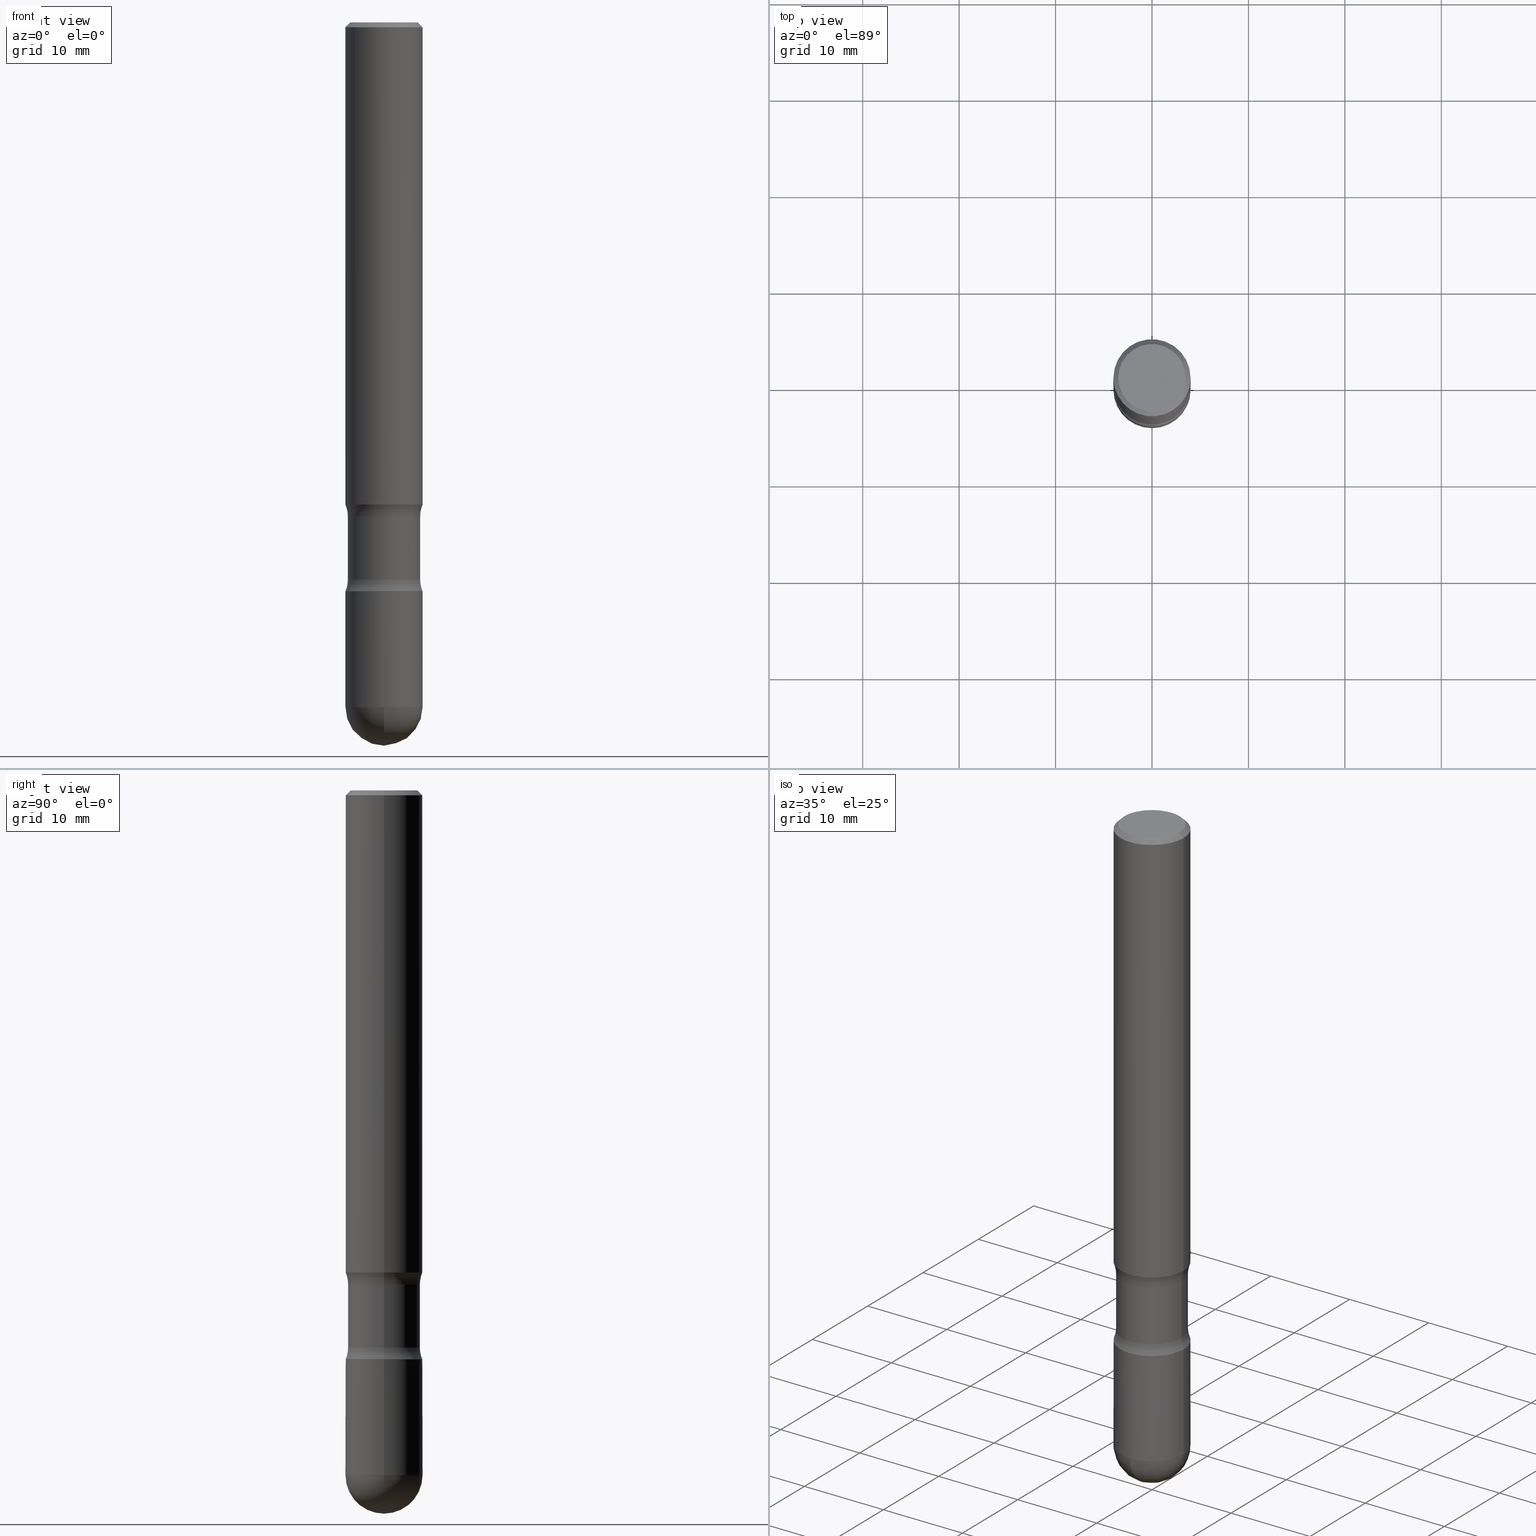
[diagram: canonical four-view strip — front | top / right | iso, engineering-drawing reading convention]
A machine part, canonical four-view strip (front | top / right | iso — engineering-drawing reading convention). The complete STEP part file that produces these views, byte-faithful:
ISO-10303-21;
HEADER;
FILE_DESCRIPTION (( 'STEP AP203' ),
    '1' );
FILE_NAME ('44929.STEP',
    '2024-02-29T19:26:05',
    ( '' ),
    ( '' ),
    'SwSTEP 2.0',
    'SolidWorks 2023',
    '' );
FILE_SCHEMA (( 'CONFIG_CONTROL_DESIGN' ));
ENDSEC;

DATA;
#1 = CARTESIAN_POINT ( 'NONE',  ( 4.890937612370288047E-31, -6.982962677686311331E-17, -0.02000000000000005940 ) ) ;
#2 = DIRECTION ( 'NONE',  ( -2.445468806185136597E-29, 3.491481338843145583E-15, 1.000000000000000000 ) ) ;
#3 = EDGE_LOOP ( 'NONE', ( #522, #311 ) ) ;
#4 = FACE_OUTER_BOUND ( 'NONE', #107, .T. ) ;
#5 = VERTEX_POINT ( 'NONE', #45 ) ;
#6 = AXIS2_PLACEMENT_3D ( 'NONE', #65, #548, #465 ) ;
#7 = DIRECTION ( 'NONE',  ( -1.000000000000000000, 6.982962677686265922E-15, -4.876176775795935793E-29 ) ) ;
#8 = AXIS2_PLACEMENT_3D ( 'NONE', #202, #520, #346 ) ;
#9 = DIRECTION ( 'NONE',  ( 2.445468806185136597E-29, -3.491481338843145583E-15, -1.000000000000000000 ) ) ;
#10 = CARTESIAN_POINT ( 'NONE',  ( 0.1569999999999995566, -9.206687142395482875E-15, -2.322899999999999743 ) ) ;
#11 = APPLICATION_CONTEXT ( 'configuration controlled 3d designs of mechanical parts and assemblies' ) ;
#12 = DIRECTION ( 'NONE',  ( -1.000000000000000000, 6.860497997771528407E-15, 0.000000000000000000 ) ) ;
#13 = CC_DESIGN_PERSON_AND_ORGANIZATION_ASSIGNMENT ( #90, #261, ( #39 ) ) ;
#14 = FACE_OUTER_BOUND ( 'NONE', #271, .T. ) ;
#15 = ORIENTED_EDGE ( 'NONE', *, *, #31, .T. ) ;
#16 = CALENDAR_DATE ( 2024, 29, 2 ) ;
#17 = AXIS2_PLACEMENT_3D ( 'NONE', #526, #127, #490 ) ;
#18 = CARTESIAN_POINT ( 'NONE',  ( 9.601573681818597005E-16, 0.1374999999999997335, -4.779444278458813133E-16 ) ) ;
#19 = EDGE_CURVE ( 'NONE', #279, #371, #563, .T. ) ;
#20 = DIRECTION ( 'NONE',  ( 1.000000000000000000, -6.982962677686265922E-15, 4.883557194083112340E-29 ) ) ;
#21 = ORIENTED_EDGE ( 'NONE', *, *, #433, .T. ) ;
#22 = APPROVAL ( #366, 'UNSPECIFIED' ) ;
#23 = DIRECTION ( 'NONE',  ( -2.445468806185136597E-29, 3.491481338843145583E-15, 1.000000000000000000 ) ) ;
#24 = EDGE_CURVE ( 'NONE', #234, #5, #302, .T. ) ;
#25 = CARTESIAN_POINT ( 'NONE',  ( 5.679720946942348165E-29, -8.109136230210588542E-15, -2.322548925006552967 ) ) ;
#26 = AXIS2_PLACEMENT_3D ( 'NONE', #530, #47, #12 ) ;
#27 = APPROVAL_PERSON_ORGANIZATION ( #566, #71, #215 ) ;
#28 = LINE ( 'NONE', #117, #558 ) ;
#29 = CYLINDRICAL_SURFACE ( 'NONE', #199, 0.1574999999999998623 ) ;
#30 = CARTESIAN_POINT ( 'NONE',  ( -0.1574999999999998623, -7.010545380263155655E-15, -2.322899999999999743 ) ) ;
#31 = EDGE_CURVE ( 'NONE', #288, #160, #430, .T. ) ;
#32 = CIRCLE ( 'NONE', #163, 0.1474999999999995759 ) ;
#33 = CARTESIAN_POINT ( 'NONE',  ( 6.835818953929311707E-29, -9.759737786468243605E-15, -2.795299999999999674 ) ) ;
#34 = CC_DESIGN_PERSON_AND_ORGANIZATION_ASSIGNMENT ( #230, #540, ( #500 ) ) ;
#35 = ORIENTED_EDGE ( 'NONE', *, *, #527, .F. ) ;
#36 = CARTESIAN_POINT ( 'NONE',  ( 6.822350084874735636E-29, -9.779025973554814517E-15, -2.795299999999999674 ) ) ;
#37 = ADVANCED_FACE ( 'NONE', ( #216 ), #379, .F. ) ;
#38 = DATE_TIME_ROLE ( 'creation_date' ) ;
#39 = PRODUCT ( '44929', '44929', '', ( #354 ) ) ;
#40 = FACE_OUTER_BOUND ( 'NONE', #332, .T. ) ;
#41 = AXIS2_PLACEMENT_3D ( 'NONE', #25, #503, #381 ) ;
#42 = CIRCLE ( 'NONE', #41, 0.1573510749934463604 ) ;
#43 = DIRECTION ( 'NONE',  ( -1.000000000000000000, 6.982962677686265922E-15, -4.876176775795935793E-29 ) ) ;
#44 = DIRECTION ( 'NONE',  ( 2.445468806185136877E-29, -3.491481338843145188E-15, -1.000000000000000000 ) ) ;
#45 = CARTESIAN_POINT ( 'NONE',  ( -0.1569999999999995566, -6.992949752029807948E-15, -2.322899999999999743 ) ) ;
#46 = ADVANCED_FACE ( 'NONE', ( #94 ), #441, .T. ) ;
#47 = DIRECTION ( 'NONE',  ( 6.860497997771531562E-15, 1.000000000000000000, -3.491481338843145583E-15 ) ) ;
#48 = ORIENTED_EDGE ( 'NONE', *, *, #385, .F. ) ;
#49 = CARTESIAN_POINT ( 'NONE',  ( -0.2725000000000002420, -6.036457717796929902E-15, -2.273910205144336505 ) ) ;
#50 = EDGE_CURVE ( 'NONE', #5, #234, #222, .T. ) ;
#51 = AXIS2_PLACEMENT_3D ( 'NONE', #519, #451, #226 ) ;
#52 = COORDINATED_UNIVERSAL_TIME_OFFSET ( 5, 0, .BEHIND. ) ;
#53 = CIRCLE ( 'NONE', #360, 0.1374999999999997335 ) ;
#54 = CARTESIAN_POINT ( 'NONE',  ( -0.2724999999999879186, -5.141170640375611152E-15, -2.017489794855663376 ) ) ;
#55 = FACE_OUTER_BOUND ( 'NONE', #459, .T. ) ;
#56 = ORIENTED_EDGE ( 'NONE', *, *, #400, .F. ) ;
#57 = DATE_AND_TIME ( #142, #211 ) ;
#58 = EDGE_CURVE ( 'NONE', #237, #397, #118, .T. ) ;
#59 = CARTESIAN_POINT ( 'NONE',  ( -0.1574999999999994738, -7.815945085411339316E-15, -2.795299999999999674 ) ) ;
#60 = AXIS2_PLACEMENT_3D ( 'NONE', #54, #178, #355 ) ;
#61 = ORIENTED_EDGE ( 'NONE', *, *, #524, .T. ) ;
#62 = CARTESIAN_POINT ( 'NONE',  ( 5.680579489887452821E-29, -8.110362001998742346E-15, -2.322899999999999743 ) ) ;
#63 = DATE_AND_TIME ( #16, #294 ) ;
#64 = EDGE_CURVE ( 'NONE', #288, #279, #447, .T. ) ;
#65 = CARTESIAN_POINT ( 'NONE',  ( 5.680579489887452821E-29, -8.110362001998742346E-15, -2.322899999999999743 ) ) ;
#66 = EDGE_CURVE ( 'NONE', #160, #397, #324, .T. ) ;
#67 = CALENDAR_DATE ( 2024, 29, 2 ) ;
#68 = DIRECTION ( 'NONE',  ( -1.000000000000000000, 6.982962677686265922E-15, -4.876176775795935793E-29 ) ) ;
#69 = EDGE_LOOP ( 'NONE', ( #104, #146, #179, #228 ) ) ;
#70 = CARTESIAN_POINT ( 'NONE',  ( 0.1573510749934463604, -9.188642965150322585E-15, -2.322548925006552967 ) ) ;
#71 = APPROVAL ( #218, 'UNSPECIFIED' ) ;
#72 = AXIS2_PLACEMENT_3D ( 'NONE', #1, #402, #97 ) ;
#73 = AXIS2_PLACEMENT_3D ( 'NONE', #473, #250, #555 ) ;
#74 = ORIENTED_EDGE ( 'NONE', *, *, #469, .T. ) ;
#75 = DIRECTION ( 'NONE',  ( 2.445468806185136877E-29, -3.491481338843145188E-15, -1.000000000000000000 ) ) ;
#76 = CYLINDRICAL_SURFACE ( 'NONE', #326, 0.1574999999999995015 ) ;
#77 = EDGE_CURVE ( 'NONE', #328, #371, #557, .T. ) ;
#78 = DIRECTION ( 'NONE',  ( -1.000000000000000000, 6.982962677686268288E-15, 0.000000000000000000 ) ) ;
#79 = DIRECTION ( 'NONE',  ( -1.000000000000000000, 7.105427357601001070E-15, -4.926315508542082329E-29 ) ) ;
#80 = ORIENTED_EDGE ( 'NONE', *, *, #256, .T. ) ;
#81 = TOROIDAL_SURFACE ( 'NONE', #550, 0.2724999999999879186, 0.1249999999999883565 ) ;
#82 = AXIS2_PLACEMENT_3D ( 'NONE', #132, #95, #43 ) ;
#83 = FACE_OUTER_BOUND ( 'NONE', #446, .T. ) ;
#84 = APPLICATION_PROTOCOL_DEFINITION ( 'international standard', 'config_control_design', 1994, #98 ) ;
#85 = CARTESIAN_POINT ( 'NONE',  ( 6.835818953929311707E-29, -9.759737786468243605E-15, -2.795299999999999674 ) ) ;
#86 = CARTESIAN_POINT ( 'NONE',  ( 4.813905344975444077E-29, -6.872981015512735652E-15, -1.968500000000001249 ) ) ;
#87 = ORIENTED_EDGE ( 'NONE', *, *, #249, .T. ) ;
#88 = AXIS2_PLACEMENT_3D ( 'NONE', #533, #2, #212 ) ;
#89 = APPROVAL_PERSON_ORGANIZATION ( #235, #22, #453 ) ;
#90 = PERSON_AND_ORGANIZATION ( #314, #403 ) ;
#91 = DIRECTION ( 'NONE',  ( -1.000000000000000000, 6.982962677686266711E-15, 0.000000000000000000 ) ) ;
#92 = DIMENSIONAL_EXPONENTS ( 1.000000000000000000, 0.000000000000000000, 0.000000000000000000, 0.000000000000000000, 0.000000000000000000, 0.000000000000000000, 0.000000000000000000 ) ;
#93 = EDGE_CURVE ( 'NONE', #435, #145, #252, .T. ) ;
#94 = FACE_OUTER_BOUND ( 'NONE', #323, .T. ) ;
#95 = DIRECTION ( 'NONE',  ( 2.445468806185136597E-29, -3.491481338843145583E-15, -1.000000000000000000 ) ) ;
#96 = ADVANCED_FACE ( 'NONE', ( #277 ), #172, .T. ) ;
#97 = DIRECTION ( 'NONE',  ( -1.000000000000000000, 6.982962677686266711E-15, 0.000000000000000000 ) ) ;
#98 = APPLICATION_CONTEXT ( 'configuration controlled 3d designs of mechanical parts and assemblies' ) ;
#99 = VECTOR ( 'NONE', #513, 39.37007874015748143 ) ;
#100 = DIRECTION ( 'NONE',  ( -6.982962677686266711E-15, -1.000000000000000000, 3.491481338843145583E-15 ) ) ;
#101 = ORIENTED_EDGE ( 'NONE', *, *, #535, .F. ) ;
#102 = ADVANCED_FACE ( 'NONE', ( #262 ), #125, .T. ) ;
#103 = ORIENTED_EDGE ( 'NONE', *, *, #449, .T. ) ;
#104 = ORIENTED_EDGE ( 'NONE', *, *, #442, .F. ) ;
#105 = DIRECTION ( 'NONE',  ( -1.000000000000000000, 6.982962677686266711E-15, 0.000000000000000000 ) ) ;
#106 = VERTEX_POINT ( 'NONE', #138 ) ;
#107 = EDGE_LOOP ( 'NONE', ( #534, #80, #21, #325 ) ) ;
#108 = ORIENTED_EDGE ( 'NONE', *, *, #183, .F. ) ;
#109 = DIRECTION ( 'NONE',  ( 2.445468806185136597E-29, -3.491481338843145583E-15, -1.000000000000000000 ) ) ;
#110 = EDGE_LOOP ( 'NONE', ( #488, #87 ) ) ;
#111 = AXIS2_PLACEMENT_3D ( 'NONE', #394, #353, #315 ) ;
#112 = CIRCLE ( 'NONE', #126, 0.1574999999999997513 ) ;
#113 = LINE ( 'NONE', #283, #180 ) ;
#114 = SHAPE_DEFINITION_REPRESENTATION ( #203, #291 ) ;
#115 = DIRECTION ( 'NONE',  ( -1.000000000000000000, 6.982962677686268288E-15, 0.000000000000000000 ) ) ;
#116 = CARTESIAN_POINT ( 'NONE',  ( 5.560776474746518841E-29, -7.939315047466438211E-15, -2.273910205144336061 ) ) ;
#117 = CARTESIAN_POINT ( 'NONE',  ( 0.1574999999999997513, -1.150358061425877697E-15, -0.02000000000000005940 ) ) ;
#118 = CIRCLE ( 'NONE', #60, 0.1249999999999883565 ) ;
#119 = AXIS2_PLACEMENT_3D ( 'NONE', #424, #518, #246 ) ;
#120 = CIRCLE ( 'NONE', #423, 0.1574999999999994738 ) ;
#121 = CARTESIAN_POINT ( 'NONE',  ( -0.1474999999999996314, -7.080375007040019742E-15, -2.322899999999999743 ) ) ;
#122 = CARTESIAN_POINT ( 'NONE',  ( 0.000000000000000000, 0.000000000000000000, 0.000000000000000000 ) ) ;
#123 = LINE ( 'NONE', #343, #253 ) ;
#124 = ADVANCED_FACE ( 'NONE', ( #40 ), #310, .T. ) ;
#125 = CONICAL_SURFACE ( 'NONE', #72, 0.1574999999999997513, 0.7853981633974473908 ) ;
#126 = AXIS2_PLACEMENT_3D ( 'NONE', #562, #516, #384 ) ;
#127 = DIRECTION ( 'NONE',  ( -2.445468806185136597E-29, 3.491481338843145583E-15, 1.000000000000000000 ) ) ;
#128 = CYLINDRICAL_SURFACE ( 'NONE', #111, 0.1474999999999996314 ) ;
#129 = DIRECTION ( 'NONE',  ( -1.000000000000000000, 6.982962677686266711E-15, 0.000000000000000000 ) ) ;
#130 = AXIS2_PLACEMENT_3D ( 'NONE', #220, #209, #274 ) ;
#131 = EDGE_CURVE ( 'NONE', #397, #160, #486, .T. ) ;
#132 = CARTESIAN_POINT ( 'NONE',  ( 0.000000000000000000, 0.000000000000000000, 0.000000000000000000 ) ) ;
#133 = DIRECTION ( 'NONE',  ( 2.445468806185136597E-29, -3.491481338843145583E-15, -1.000000000000000000 ) ) ;
#134 = EDGE_LOOP ( 'NONE', ( #408, #213 ) ) ;
#135 = APPROVAL ( #193, 'UNSPECIFIED' ) ;
#136 = DIRECTION ( 'NONE',  ( 2.445468806185136597E-29, -3.491481338843145583E-15, -1.000000000000000000 ) ) ;
#137 = VERTEX_POINT ( 'NONE', #259 ) ;
#138 = CARTESIAN_POINT ( 'NONE',  ( -0.1574999999999995570, -7.815945085411339316E-15, -2.322899999999999743 ) ) ;
#139 = CARTESIAN_POINT ( 'NONE',  ( 5.680579489887452821E-29, -8.110362001998742346E-15, -2.322899999999999743 ) ) ;
#140 = VERTEX_POINT ( 'NONE', #444 ) ;
#141 = CIRCLE ( 'NONE', #26, 0.1250000000000005829 ) ;
#142 = CALENDAR_DATE ( 2024, 29, 2 ) ;
#143 = ORIENTED_EDGE ( 'NONE', *, *, #527, .T. ) ;
#144 = DIRECTION ( 'NONE',  ( 2.438088387897960049E-29, -3.491481338843145188E-15, -1.000000000000000000 ) ) ;
#145 = VERTEX_POINT ( 'NONE', #450 ) ;
#146 = ORIENTED_EDGE ( 'NONE', *, *, #24, .F. ) ;
#147 = DIRECTION ( 'NONE',  ( 1.000000000000000000, -6.982962677686269077E-15, 0.000000000000000000 ) ) ;
#148 = VERTEX_POINT ( 'NONE', #322 ) ;
#149 = CARTESIAN_POINT ( 'NONE',  ( 0.1474999999999996592, -8.503594963427033925E-15, -2.273910205144336061 ) ) ;
#150 = ADVANCED_FACE ( 'NONE', ( #499 ), #81, .F. ) ;
#151 = VECTOR ( 'NONE', #44, 39.37007874015748143 ) ;
#152 = ORIENTED_EDGE ( 'NONE', *, *, #521, .F. ) ;
#153 = CIRCLE ( 'NONE', #8, 0.1474999999999995759 ) ;
#154 = FACE_OUTER_BOUND ( 'NONE', #110, .T. ) ;
#155 = EDGE_CURVE ( 'NONE', #383, #279, #141, .T. ) ;
#156 = DIRECTION ( 'NONE',  ( -0.7071067811865469066, 2.468850131082250355E-15, -0.7071067811865481278 ) ) ;
#157 = ORIENTED_EDGE ( 'NONE', *, *, #176, .T. ) ;
#158 = CARTESIAN_POINT ( 'NONE',  ( 6.822350084874735636E-29, -9.779025973554814517E-15, -2.795299999999999674 ) ) ;
#159 = ADVANCED_FACE ( 'NONE', ( #4 ), #128, .T. ) ;
#160 = VERTEX_POINT ( 'NONE', #491 ) ;
#161 = ORIENTED_EDGE ( 'NONE', *, *, #342, .F. ) ;
#162 = DIRECTION ( 'NONE',  ( -7.105427357601000281E-15, -1.000000000000000000, 0.000000000000000000 ) ) ;
#163 = AXIS2_PLACEMENT_3D ( 'NONE', #373, #542, #280 ) ;
#164 = CC_DESIGN_SECURITY_CLASSIFICATION ( #565, ( #500 ) ) ;
#165 = FACE_OUTER_BOUND ( 'NONE', #467, .T. ) ;
#166 = ADVANCED_FACE ( 'NONE', ( #308 ), #531, .T. ) ;
#167 = CARTESIAN_POINT ( 'NONE',  ( -0.1574999999999999456, -5.773164393777148960E-15, -1.968500000000001249 ) ) ;
#168 = CLOSED_SHELL ( 'NONE', ( #96, #474, #405, #485, #316 ) ) ;
#169 = CIRCLE ( 'NONE', #422, 0.1474999999999996314 ) ;
#170 = LOCAL_TIME ( 14, 26, 5.000000000000000000, #52 ) ;
#171 = PERSON_AND_ORGANIZATION ( #314, #403 ) ;
#172 = CYLINDRICAL_SURFACE ( 'NONE', #88, 0.1574999999999995015 ) ;
#173 = APPLICATION_PROTOCOL_DEFINITION ( 'international standard', 'config_control_design', 1994, #11 ) ;
#174 = CARTESIAN_POINT ( 'NONE',  ( 4.933708360116374694E-29, -7.044027970045034264E-15, -2.017489794855663376 ) ) ;
#175 = MANIFOLD_SOLID_BREP ( 'Body-Move/Copy2[2]', #496 ) ;
#176 = EDGE_CURVE ( 'NONE', #369, #517, #438, .T. ) ;
#177 = APPROVAL_DATE_TIME ( #361, #71 ) ;
#178 = DIRECTION ( 'NONE',  ( -6.982962677686266711E-15, -1.000000000000000000, 3.491481338843145583E-15 ) ) ;
#179 = ORIENTED_EDGE ( 'NONE', *, *, #521, .T. ) ;
#180 = VECTOR ( 'NONE', #377, 39.37007874015748143 ) ;
#181 = CALENDAR_DATE ( 2024, 29, 2 ) ;
#182 = DIRECTION ( 'NONE',  ( 1.000000000000000000, -6.982962677686269077E-15, 0.000000000000000000 ) ) ;
#183 = EDGE_CURVE ( 'NONE', #148, #455, #258, .T. ) ;
#184 = CARTESIAN_POINT ( 'NONE',  ( 5.680579489887452821E-29, -8.110362001998742346E-15, -2.322899999999999743 ) ) ;
#185 = ORIENTED_EDGE ( 'NONE', *, *, #66, .T. ) ;
#186 = EDGE_LOOP ( 'NONE', ( #320, #552, #247, #372 ) ) ;
#187 = SECURITY_CLASSIFICATION_LEVEL ( 'unclassified' ) ;
#188 = CARTESIAN_POINT ( 'NONE',  ( -0.1574999999999997513, 1.029986994958722210E-15, -0.02000000000000005940 ) ) ;
#189 = AXIS2_PLACEMENT_3D ( 'NONE', #463, #23, #194 ) ;
#190 = DATE_TIME_ROLE ( 'classification_date' ) ;
#191 = DIRECTION ( 'NONE',  ( -2.438088387897960049E-29, 3.491481338843145188E-15, 1.000000000000000000 ) ) ;
#192 = VERTEX_POINT ( 'NONE', #59 ) ;
#193 = APPROVAL_STATUS ( 'not_yet_approved' ) ;
#194 = DIRECTION ( 'NONE',  ( 1.000000000000000000, -6.982962677686269077E-15, 0.000000000000000000 ) ) ;
#195 = ORIENTED_EDGE ( 'NONE', *, *, #155, .T. ) ;
#196 = LINE ( 'NONE', #457, #99 ) ;
#197 = PERSON_AND_ORGANIZATION_ROLE ( 'classification_officer' ) ;
#198 = AXIS2_PLACEMENT_3D ( 'NONE', #460, #20, #511 ) ;
#199 = AXIS2_PLACEMENT_3D ( 'NONE', #432, #349, #477 ) ;
#200 = CARTESIAN_POINT ( 'NONE',  ( -0.1474999999999995759, -6.014040975086312449E-15, -2.017489794855663376 ) ) ;
#201 = DIRECTION ( 'NONE',  ( -1.000000000000000000, 6.982962677686265922E-15, -4.876176775795935793E-29 ) ) ;
#202 = CARTESIAN_POINT ( 'NONE',  ( 4.933708360116374694E-29, -7.044027970045034264E-15, -2.017489794855663376 ) ) ;
#203 = PRODUCT_DEFINITION_SHAPE ( 'NONE', 'NONE',  #207 ) ;
#204 = DIRECTION ( 'NONE',  ( -2.445468806185136597E-29, 3.491481338843145583E-15, 1.000000000000000000 ) ) ;
#205 = DIRECTION ( 'NONE',  ( 2.445468806185136597E-29, -3.491481338843145583E-15, -1.000000000000000000 ) ) ;
#206 = DIRECTION ( 'NONE',  ( -1.000000000000000000, 6.982962677686265922E-15, -4.883557194083112340E-29 ) ) ;
#207 = PRODUCT_DEFINITION ( 'UNKNOWN', '', #500, #338 ) ;
#208 = DIRECTION ( 'NONE',  ( 1.000000000000000000, -6.982962677686260400E-15, 0.000000000000000000 ) ) ;
#209 = DIRECTION ( 'NONE',  ( -2.445468806185136597E-29, 3.491481338843145583E-15, 1.000000000000000000 ) ) ;
#210 = AXIS2_PLACEMENT_3D ( 'NONE', #509, #240, #549 ) ;
#211 = LOCAL_TIME ( 14, 26, 5.000000000000000000, #278 ) ;
#212 = DIRECTION ( 'NONE',  ( 1.000000000000000000, -6.982962677686266711E-15, 4.876176775795935793E-29 ) ) ;
#213 = ORIENTED_EDGE ( 'NONE', *, *, #547, .F. ) ;
#214 = ORIENTED_EDGE ( 'NONE', *, *, #306, .F. ) ;
#215 = APPROVAL_ROLE ( '' ) ;
#216 = FACE_OUTER_BOUND ( 'NONE', #186, .T. ) ;
#217 = CARTESIAN_POINT ( 'NONE',  ( 5.560776474746518841E-29, -7.939315047466438211E-15, -2.273910205144336061 ) ) ;
#218 = APPROVAL_STATUS ( 'not_yet_approved' ) ;
#219 = CC_DESIGN_DATE_AND_TIME_ASSIGNMENT ( #63, #190, ( #565 ) ) ;
#220 = CARTESIAN_POINT ( 'NONE',  ( 5.680579489887452821E-29, -8.110362001998742346E-15, -2.322899999999999743 ) ) ;
#221 = ORIENTED_EDGE ( 'NONE', *, *, #77, .F. ) ;
#222 = CIRCLE ( 'NONE', #392, 0.1569999999999995566 ) ;
#223 = VECTOR ( 'NONE', #307, 39.37007874015748143 ) ;
#224 = CALENDAR_DATE ( 2024, 29, 2 ) ;
#225 = DIRECTION ( 'NONE',  ( 2.445468806185136597E-29, -3.491481338843145583E-15, -1.000000000000000000 ) ) ;
#226 = DIRECTION ( 'NONE',  ( -1.000000000000000000, 6.860497997771532351E-15, 0.000000000000000000 ) ) ;
#227 = CARTESIAN_POINT ( 'NONE',  ( -0.1474999999999996314, -6.909328052507716396E-15, -2.273910205144336061 ) ) ;
#228 = ORIENTED_EDGE ( 'NONE', *, *, #333, .T. ) ;
#229 = CC_DESIGN_PERSON_AND_ORGANIZATION_ASSIGNMENT ( #313, #272, ( #207 ) ) ;
#230 = PERSON_AND_ORGANIZATION ( #314, #403 ) ;
#231 = DIRECTION ( 'NONE',  ( -2.445468806185136597E-29, 3.491481338843145583E-15, 1.000000000000000000 ) ) ;
#232 = AXIS2_PLACEMENT_3D ( 'NONE', #18, #191, #367 ) ;
#233 = AXIS2_PLACEMENT_3D ( 'NONE', #36, #206, #292 ) ;
#234 = VERTEX_POINT ( 'NONE', #289 ) ;
#235 = PERSON_AND_ORGANIZATION ( #314, #403 ) ;
#236 = ORIENTED_EDGE ( 'NONE', *, *, #442, .T. ) ;
#237 = VERTEX_POINT ( 'NONE', #200 ) ;
#238 = DIRECTION ( 'NONE',  ( 1.000000000000000000, -6.982962677686273021E-15, 0.000000000000000000 ) ) ;
#239 = EDGE_CURVE ( 'NONE', #537, #106, #470, .T. ) ;
#240 = DIRECTION ( 'NONE',  ( 2.445468806185136597E-29, -3.491481338843145583E-15, -1.000000000000000000 ) ) ;
#241 = CC_DESIGN_PERSON_AND_ORGANIZATION_ASSIGNMENT ( #375, #197, ( #565 ) ) ;
#242 = CARTESIAN_POINT ( 'NONE',  ( -0.1573510749934463604, -7.010359546237539616E-15, -2.322548925006552967 ) ) ;
#243 = AXIS2_PLACEMENT_3D ( 'NONE', #290, #144, #68 ) ;
#244 = ORIENTED_EDGE ( 'NONE', *, *, #400, .T. ) ;
#245 = APPROVAL_PERSON_ORGANIZATION ( #171, #135, #456 ) ;
#246 = DIRECTION ( 'NONE',  ( -1.000000000000000000, 6.982962677686265922E-15, -4.883557194083112901E-29 ) ) ;
#247 = ORIENTED_EDGE ( 'NONE', *, *, #58, .T. ) ;
#248 = FACE_OUTER_BOUND ( 'NONE', #304, .T. ) ;
#249 = EDGE_CURVE ( 'NONE', #106, #537, #344, .T. ) ;
#250 = DIRECTION ( 'NONE',  ( 2.445468806185136597E-29, -3.491481338843145583E-15, -1.000000000000000000 ) ) ;
#251 = DIRECTION ( 'NONE',  ( -2.445468806185136597E-29, 3.491481338843145583E-15, 1.000000000000000000 ) ) ;
#252 = CIRCLE ( 'NONE', #475, 0.1574999999999997513 ) ;
#253 = VECTOR ( 'NONE', #386, 39.37007874015748854 ) ;
#254 = ADVANCED_FACE ( 'NONE', ( #411 ), #376, .T. ) ;
#255 = FACE_OUTER_BOUND ( 'NONE', #506, .T. ) ;
#256 = EDGE_CURVE ( 'NONE', #288, #237, #32, .T. ) ;
#257 = DIRECTION ( 'NONE',  ( 1.000000000000000000, 0.000000000000000000, 0.000000000000000000 ) ) ;
#258 = CIRCLE ( 'NONE', #523, 0.1574999999999994738 ) ;
#259 = CARTESIAN_POINT ( 'NONE',  ( 0.1374999999999997335, -1.046838268059730717E-15, 7.017535886221985357E-30 ) ) ;
#260 = CC_DESIGN_APPROVAL ( #135, ( #500 ) ) ;
#261 = PERSON_AND_ORGANIZATION_ROLE ( 'design_owner' ) ;
#262 = FACE_OUTER_BOUND ( 'NONE', #504, .T. ) ;
#263 = ORIENTED_EDGE ( 'NONE', *, *, #387, .F. ) ;
#264 = ORIENTED_EDGE ( 'NONE', *, *, #269, .F. ) ;
#265 = ORIENTED_EDGE ( 'NONE', *, *, #437, .T. ) ;
#266 = ADVANCED_FACE ( 'NONE', ( #14 ), #293, .T. ) ;
#267 =( NAMED_UNIT ( * ) PLANE_ANGLE_UNIT ( ) SI_UNIT ( $, .RADIAN. ) );
#268 = CARTESIAN_POINT ( 'NONE',  ( 4.933708360116374694E-29, -7.044027970045034264E-15, -2.017489794855663376 ) ) ;
#269 = EDGE_CURVE ( 'NONE', #455, #537, #113, .T. ) ;
#270 = ORIENTED_EDGE ( 'NONE', *, *, #378, .T. ) ;
#271 = EDGE_LOOP ( 'NONE', ( #270, #409, #56, #161 ) ) ;
#272 = PERSON_AND_ORGANIZATION_ROLE ( 'creator' ) ;
#273 = ADVANCED_FACE ( 'NONE', ( #55 ), #415, .T. ) ;
#274 = DIRECTION ( 'NONE',  ( 1.000000000000000000, -6.982962677686273021E-15, 0.000000000000000000 ) ) ;
#275 = AXIS2_PLACEMENT_3D ( 'NONE', #268, #362, #483 ) ;
#276 = TOROIDAL_SURFACE ( 'NONE', #119, 0.2725000000000002420, 0.1250000000000005829 ) ;
#277 = FACE_OUTER_BOUND ( 'NONE', #458, .T. ) ;
#278 = COORDINATED_UNIVERSAL_TIME_OFFSET ( 5, 0, .BEHIND. ) ;
#279 = VERTEX_POINT ( 'NONE', #149 ) ;
#280 = DIRECTION ( 'NONE',  ( -1.000000000000000000, 6.982962677686270655E-15, 0.000000000000000000 ) ) ;
#281 = ORIENTED_EDGE ( 'NONE', *, *, #342, .T. ) ;
#282 = EDGE_CURVE ( 'NONE', #192, #106, #196, .T. ) ;
#283 = CARTESIAN_POINT ( 'NONE',  ( 0.1574999999999995015, -1.099816621735583536E-15, 7.679978421878574211E-30 ) ) ;
#284 = ORIENTED_EDGE ( 'NONE', *, *, #269, .T. ) ;
#285 = AXIS2_PLACEMENT_3D ( 'NONE', #417, #454, #238 ) ;
#286 = UNCERTAINTY_MEASURE_WITH_UNIT (LENGTH_MEASURE( 1.000000000000000082E-05 ), #363, 'distance_accuracy_value', 'NONE');
#287 = CC_DESIGN_APPROVAL ( #22, ( #565 ) ) ;
#288 = VERTEX_POINT ( 'NONE', #553 ) ;
#289 = CARTESIAN_POINT ( 'NONE',  ( 0.1569999999999995566, -9.207300028289558199E-15, -2.322899999999999743 ) ) ;
#290 = CARTESIAN_POINT ( 'NONE',  ( 5.680579489887452821E-29, -8.110362001998742346E-15, -2.322899999999999743 ) ) ;
#291 = ADVANCED_BREP_SHAPE_REPRESENTATION ( '44929', ( #374, #175, #345 ), #543 ) ;
#292 = DIRECTION ( 'NONE',  ( 6.982962677686265922E-15, 1.000000000000000000, -3.469013325287939094E-15 ) ) ;
#293 = CONICAL_SURFACE ( 'NONE', #357, 0.1574999999999997513, 0.7853981633974473908 ) ;
#294 = LOCAL_TIME ( 14, 26, 5.000000000000000000, #410 ) ;
#295 = DIRECTION ( 'NONE',  ( -1.000000000000000000, 6.982962677686265922E-15, -4.883557194083112340E-29 ) ) ;
#296 = ORIENTED_EDGE ( 'NONE', *, *, #433, .F. ) ;
#297 = FACE_OUTER_BOUND ( 'NONE', #556, .T. ) ;
#298 = PLANE ( 'NONE',  #393 ) ;
#299 = EDGE_CURVE ( 'NONE', #371, #279, #169, .T. ) ;
#300 = DIRECTION ( 'NONE',  ( 2.445468806185136597E-29, -3.491481338843145583E-15, -1.000000000000000000 ) ) ;
#301 = FACE_OUTER_BOUND ( 'NONE', #494, .T. ) ;
#302 = CIRCLE ( 'NONE', #370, 0.1569999999999995566 ) ;
#303 = TOROIDAL_SURFACE ( 'NONE', #73, 0.2725000000000002420, 0.1250000000000005829 ) ;
#304 = EDGE_LOOP ( 'NONE', ( #35, #359, #497, #401 ) ) ;
#305 = LENGTH_MEASURE_WITH_UNIT ( LENGTH_MEASURE( 0.02539999999999999897 ), #529 );
#306 = EDGE_CURVE ( 'NONE', #328, #383, #498, .T. ) ;
#307 = DIRECTION ( 'NONE',  ( 2.445468806185136877E-29, -3.491481338843145188E-15, -1.000000000000000000 ) ) ;
#308 = FACE_OUTER_BOUND ( 'NONE', #69, .T. ) ;
#309 = LINE ( 'NONE', #10, #510 ) ;
#310 = CONICAL_SURFACE ( 'NONE', #130, 0.1569999999999995566, 0.7853981633976915289 ) ;
#311 = ORIENTED_EDGE ( 'NONE', *, *, #50, .T. ) ;
#312 = AXIS2_PLACEMENT_3D ( 'NONE', #85, #532, #208 ) ;
#313 = PERSON_AND_ORGANIZATION ( #314, #403 ) ;
#314 = PERSON ( 'UNSPECIFIED', 'UNSPECIFIED', 'UNSPECIFIED', ('UNSPECIFIED'), ('UNSPECIFIED'), ('UNSPECIFIED') ) ;
#315 = DIRECTION ( 'NONE',  ( -1.000000000000000000, 6.982962677686268288E-15, 0.000000000000000000 ) ) ;
#316 = ADVANCED_FACE ( 'NONE', ( #154 ), #340, .F. ) ;
#317 = ORIENTED_EDGE ( 'NONE', *, *, #256, .F. ) ;
#318 = CARTESIAN_POINT ( 'NONE',  ( 1.099816621735655717E-15, 0.1574999999999902867, -2.795300000000000118 ) ) ;
#319 = DIRECTION ( 'NONE',  ( 2.445468806185136597E-29, -3.491481338843145583E-15, -1.000000000000000000 ) ) ;
#320 = ORIENTED_EDGE ( 'NONE', *, *, #31, .F. ) ;
#321 = ORIENTED_EDGE ( 'NONE', *, *, #547, .T. ) ;
#322 = CARTESIAN_POINT ( 'NONE',  ( -1.119104808822089564E-15, -0.1575000000000098266, -2.795299999999998786 ) ) ;
#323 = EDGE_LOOP ( 'NONE', ( #265, #501, #545, #296 ) ) ;
#324 = CIRCLE ( 'NONE', #541, 0.1574999999999999456 ) ;
#325 = ORIENTED_EDGE ( 'NONE', *, *, #19, .F. ) ;
#326 = AXIS2_PLACEMENT_3D ( 'NONE', #122, #251, #389 ) ;
#327 = ORIENTED_EDGE ( 'NONE', *, *, #299, .T. ) ;
#328 = VERTEX_POINT ( 'NONE', #242 ) ;
#329 = PERSON_AND_ORGANIZATION_ROLE ( 'design_supplier' ) ;
#330 = ORIENTED_EDGE ( 'NONE', *, *, #93, .F. ) ;
#331 = LINE ( 'NONE', #188, #368 ) ;
#332 = EDGE_LOOP ( 'NONE', ( #472, #236, #478, #152 ) ) ;
#333 = EDGE_CURVE ( 'NONE', #383, #328, #42, .T. ) ;
#334 = CARTESIAN_POINT ( 'NONE',  ( 6.835818953929311707E-29, -9.759737786468243605E-15, -2.795299999999999674 ) ) ;
#335 = ORIENTED_EDGE ( 'NONE', *, *, #77, .T. ) ;
#336 = DIRECTION ( 'NONE',  ( 2.445468806185136597E-29, -3.491481338843145583E-15, -1.000000000000000000 ) ) ;
#337 = CC_DESIGN_PERSON_AND_ORGANIZATION_ASSIGNMENT ( #495, #329, ( #500 ) ) ;
#338 = DESIGN_CONTEXT ( 'detailed design', #98, 'design' ) ;
#339 = CIRCLE ( 'NONE', #17, 0.1574999999999994738 ) ;
#340 = PLANE ( 'NONE',  #243 ) ;
#341 = CARTESIAN_POINT ( 'NONE',  ( 7.214245856376183829E-29, -1.031929019087932635E-14, -2.952800000000000313 ) ) ;
#342 = EDGE_CURVE ( 'NONE', #140, #145, #331, .T. ) ;
#343 = CARTESIAN_POINT ( 'NONE',  ( -0.1569999999999995566, -6.994809906855387219E-15, -2.322899999999999743 ) ) ;
#344 = CIRCLE ( 'NONE', #412, 0.1574999999999995570 ) ;
#345 = AXIS2_PLACEMENT_3D ( 'NONE', #436, #443, #257 ) ;
#346 = DIRECTION ( 'NONE',  ( -1.000000000000000000, 6.982962677686270655E-15, 0.000000000000000000 ) ) ;
#347 = ORIENTED_EDGE ( 'NONE', *, *, #282, .F. ) ;
#348 = CARTESIAN_POINT ( 'NONE',  ( 0.1574999999999994738, -1.003486651596907730E-14, -2.795299999999999674 ) ) ;
#349 = DIRECTION ( 'NONE',  ( 2.445468806185136597E-29, -3.491481338843145583E-15, -1.000000000000000000 ) ) ;
#350 = DIRECTION ( 'NONE',  ( 1.000000000000000000, -6.982962677686260400E-15, 0.000000000000000000 ) ) ;
#351 = VECTOR ( 'NONE', #514, 39.37007874015748143 ) ;
#352 = DIRECTION ( 'NONE',  ( 2.438088387897960049E-29, -3.491481338843145188E-15, -1.000000000000000000 ) ) ;
#353 = DIRECTION ( 'NONE',  ( 2.445468806185136597E-29, -3.491481338843145583E-15, -1.000000000000000000 ) ) ;
#354 = MECHANICAL_CONTEXT ( 'NONE', #11, 'mechanical' ) ;
#355 = DIRECTION ( 'NONE',  ( 1.000000000000000000, -6.982962677686269077E-15, 0.000000000000000000 ) ) ;
#356 = LINE ( 'NONE', #448, #223 ) ;
#357 = AXIS2_PLACEMENT_3D ( 'NONE', #546, #109, #105 ) ;
#358 = DIRECTION ( 'NONE',  ( 2.445468806185136597E-29, -3.491481338843145583E-15, -1.000000000000000000 ) ) ;
#359 = ORIENTED_EDGE ( 'NONE', *, *, #93, .T. ) ;
#360 = AXIS2_PLACEMENT_3D ( 'NONE', #407, #205, #201 ) ;
#361 = DATE_AND_TIME ( #181, #439 ) ;
#362 = DIRECTION ( 'NONE',  ( 2.445468806185136597E-29, -3.491481338843145583E-15, -1.000000000000000000 ) ) ;
#363 =( CONVERSION_BASED_UNIT ( 'INCH', #305 ) LENGTH_UNIT ( ) NAMED_UNIT ( #92 ) );
#364 = DIRECTION ( 'NONE',  ( -1.000000000000000000, 6.982962677686268288E-15, 0.000000000000000000 ) ) ;
#365 = ORIENTED_EDGE ( 'NONE', *, *, #239, .F. ) ;
#366 = APPROVAL_STATUS ( 'not_yet_approved' ) ;
#367 = DIRECTION ( 'NONE',  ( 1.000000000000000000, -6.982962677686265922E-15, 4.876176775795935793E-29 ) ) ;
#368 = VECTOR ( 'NONE', #156, 39.37007874015748143 ) ;
#369 = VERTEX_POINT ( 'NONE', #341 ) ;
#370 = AXIS2_PLACEMENT_3D ( 'NONE', #139, #525, #445 ) ;
#371 = VERTEX_POINT ( 'NONE', #227 ) ;
#372 = ORIENTED_EDGE ( 'NONE', *, *, #131, .T. ) ;
#373 = CARTESIAN_POINT ( 'NONE',  ( 4.933708360116374694E-29, -7.044027970045034264E-15, -2.017489794855663376 ) ) ;
#374 = MANIFOLD_SOLID_BREP ( 'Body-Move/Copy2[1]', #168 ) ;
#375 = PERSON_AND_ORGANIZATION ( #314, #403 ) ;
#376 = PLANE ( 'NONE',  #232 ) ;
#377 = DIRECTION ( 'NONE',  ( -2.445468806185136877E-29, 3.491481338843145188E-15, 1.000000000000000000 ) ) ;
#378 = EDGE_CURVE ( 'NONE', #140, #137, #53, .T. ) ;
#379 = TOROIDAL_SURFACE ( 'NONE', #275, 0.2724999999999879186, 0.1249999999999883565 ) ;
#380 = AXIS2_PLACEMENT_3D ( 'NONE', #158, #295, #390 ) ;
#381 = DIRECTION ( 'NONE',  ( -1.000000000000000000, 6.982962677686267499E-15, 0.000000000000000000 ) ) ;
#382 = ORIENTED_EDGE ( 'NONE', *, *, #282, .T. ) ;
#383 = VERTEX_POINT ( 'NONE', #70 ) ;
#384 = DIRECTION ( 'NONE',  ( -1.000000000000000000, 6.982962677686266711E-15, 0.000000000000000000 ) ) ;
#385 = EDGE_CURVE ( 'NONE', #137, #435, #28, .T. ) ;
#386 = DIRECTION ( 'NONE',  ( -0.7071067811867194353, 7.493145998870974205E-15, 0.7071067811863754882 ) ) ;
#387 = EDGE_CURVE ( 'NONE', #145, #397, #427, .T. ) ;
#388 = AXIS2_PLACEMENT_3D ( 'NONE', #49, #100, #182 ) ;
#389 = DIRECTION ( 'NONE',  ( 1.000000000000000000, -6.982962677686266711E-15, 4.876176775795935793E-29 ) ) ;
#390 = DIRECTION ( 'NONE',  ( 6.982962677686265922E-15, 1.000000000000000000, -3.469013325287939094E-15 ) ) ;
#391 = CARTESIAN_POINT ( 'NONE',  ( 0.1574999999999995570, -9.210178623734325882E-15, -2.322899999999999743 ) ) ;
#392 = AXIS2_PLACEMENT_3D ( 'NONE', #184, #319, #129 ) ;
#393 = AXIS2_PLACEMENT_3D ( 'NONE', #482, #352, #7 ) ;
#394 = CARTESIAN_POINT ( 'NONE',  ( 5.680579489887452821E-29, -8.110362001998742346E-15, -2.322899999999999743 ) ) ;
#395 = DIRECTION ( 'NONE',  ( 0.7071067811867194353, -2.468850131084058030E-15, 0.7071067811863754882 ) ) ;
#396 = CARTESIAN_POINT ( 'NONE',  ( 4.813905344975444077E-29, -6.872981015512735652E-15, -1.968500000000001249 ) ) ;
#397 = VERTEX_POINT ( 'NONE', #167 ) ;
#398 = COORDINATED_UNIVERSAL_TIME_OFFSET ( 5, 0, .BEHIND. ) ;
#399 = DIRECTION ( 'NONE',  ( -1.000000000000000000, 6.982962677686266711E-15, -4.883557194083112340E-29 ) ) ;
#400 = EDGE_CURVE ( 'NONE', #145, #435, #112, .T. ) ;
#401 = ORIENTED_EDGE ( 'NONE', *, *, #66, .F. ) ;
#402 = DIRECTION ( 'NONE',  ( 2.445468806185136597E-29, -3.491481338843145583E-15, -1.000000000000000000 ) ) ;
#403 = ORGANIZATION ( 'UNSPECIFIED', 'UNSPECIFIED', '' ) ;
#404 =( NAMED_UNIT ( * ) SI_UNIT ( $, .STERADIAN. ) SOLID_ANGLE_UNIT ( ) );
#405 = ADVANCED_FACE ( 'NONE', ( #83 ), #471, .T. ) ;
#406 = ORIENTED_EDGE ( 'NONE', *, *, #333, .F. ) ;
#407 = CARTESIAN_POINT ( 'NONE',  ( 0.000000000000000000, 0.000000000000000000, 0.000000000000000000 ) ) ;
#408 = ORIENTED_EDGE ( 'NONE', *, *, #378, .F. ) ;
#409 = ORIENTED_EDGE ( 'NONE', *, *, #385, .T. ) ;
#410 = COORDINATED_UNIVERSAL_TIME_OFFSET ( 5, 0, .BEHIND. ) ;
#411 = FACE_OUTER_BOUND ( 'NONE', #134, .T. ) ;
#412 = AXIS2_PLACEMENT_3D ( 'NONE', #62, #231, #147 ) ;
#413 = LOCAL_TIME ( 14, 26, 5.000000000000000000, #464 ) ;
#414 = ORIENTED_EDGE ( 'NONE', *, *, #449, .F. ) ;
#415 = CYLINDRICAL_SURFACE ( 'NONE', #6, 0.1574999999999998623 ) ;
#416 = ORIENTED_EDGE ( 'NONE', *, *, #131, .F. ) ;
#417 = CARTESIAN_POINT ( 'NONE',  ( 5.680579489887452821E-29, -8.110362001998742346E-15, -2.322899999999999743 ) ) ;
#418 = ORIENTED_EDGE ( 'NONE', *, *, #176, .F. ) ;
#419 = ADVANCED_FACE ( 'NONE', ( #248 ), #29, .T. ) ;
#420 = DIRECTION ( 'NONE',  ( 1.000000000000000000, -6.982962677686260400E-15, 0.000000000000000000 ) ) ;
#421 = ADVANCED_FACE ( 'NONE', ( #165 ), #303, .F. ) ;
#422 = AXIS2_PLACEMENT_3D ( 'NONE', #116, #336, #115 ) ;
#423 = AXIS2_PLACEMENT_3D ( 'NONE', #33, #204, #350 ) ;
#424 = CARTESIAN_POINT ( 'NONE',  ( 5.560776474746519962E-29, -7.939315047466439789E-15, -2.273910205144336505 ) ) ;
#425 = ORIENTED_EDGE ( 'NONE', *, *, #58, .F. ) ;
#426 = CARTESIAN_POINT ( 'NONE',  ( 6.822350084874735636E-29, -9.779025973554814517E-15, -2.795299999999999674 ) ) ;
#427 = LINE ( 'NONE', #30, #351 ) ;
#428 = AXIS2_PLACEMENT_3D ( 'NONE', #217, #300, #78 ) ;
#429 = ORIENTED_EDGE ( 'NONE', *, *, #249, .F. ) ;
#430 = CIRCLE ( 'NONE', #51, 0.1249999999999883565 ) ;
#431 = CIRCLE ( 'NONE', #515, 0.1575000000000006395 ) ;
#432 = CARTESIAN_POINT ( 'NONE',  ( 5.680579489887452821E-29, -8.110362001998742346E-15, -2.322899999999999743 ) ) ;
#433 = EDGE_CURVE ( 'NONE', #237, #371, #468, .T. ) ;
#434 = SPHERICAL_SURFACE ( 'NONE', #233, 0.1575000000000006395 ) ;
#435 = VERTEX_POINT ( 'NONE', #554 ) ;
#436 = CARTESIAN_POINT ( 'NONE',  ( 0.000000000000000000, 0.000000000000000000, 0.000000000000000000 ) ) ;
#437 = EDGE_CURVE ( 'NONE', #237, #288, #153, .T. ) ;
#438 = CIRCLE ( 'NONE', #198, 0.1575000000000006395 ) ;
#439 = LOCAL_TIME ( 14, 26, 5.000000000000000000, #398 ) ;
#440 = CIRCLE ( 'NONE', #312, 0.1574999999999994738 ) ;
#441 = CYLINDRICAL_SURFACE ( 'NONE', #564, 0.1474999999999996314 ) ;
#442 = EDGE_CURVE ( 'NONE', #5, #328, #123, .T. ) ;
#443 = DIRECTION ( 'NONE',  ( 0.000000000000000000, 0.000000000000000000, 1.000000000000000000 ) ) ;
#444 = CARTESIAN_POINT ( 'NONE',  ( -0.1374999999999997335, 9.601573681818597005E-16, -6.704743066719399103E-30 ) ) ;
#445 = DIRECTION ( 'NONE',  ( -1.000000000000000000, 6.982962677686266711E-15, 0.000000000000000000 ) ) ;
#446 = EDGE_LOOP ( 'NONE', ( #484, #157, #101, #108 ) ) ;
#447 = LINE ( 'NONE', #538, #151 ) ;
#448 = CARTESIAN_POINT ( 'NONE',  ( 0.1574999999999998623, -9.190890436647758125E-15, -2.322899999999999743 ) ) ;
#449 = EDGE_CURVE ( 'NONE', #192, #148, #120, .T. ) ;
#450 = CARTESIAN_POINT ( 'NONE',  ( -0.1574999999999997513, 1.029986994958722210E-15, -0.02000000000000005940 ) ) ;
#451 = DIRECTION ( 'NONE',  ( 6.860497997771531562E-15, 1.000000000000000000, -3.491481338843145583E-15 ) ) ;
#452 = VECTOR ( 'NONE', #75, 39.37007874015748143 ) ;
#453 = APPROVAL_ROLE ( '' ) ;
#454 = DIRECTION ( 'NONE',  ( -2.445468806185136597E-29, 3.491481338843145583E-15, 1.000000000000000000 ) ) ;
#455 = VERTEX_POINT ( 'NONE', #348 ) ;
#456 = APPROVAL_ROLE ( '' ) ;
#457 = CARTESIAN_POINT ( 'NONE',  ( -0.1574999999999995015, 1.119104808822154251E-15, -7.747322767151453163E-30 ) ) ;
#458 = EDGE_LOOP ( 'NONE', ( #61, #382, #365, #264, #479 ) ) ;
#459 = EDGE_LOOP ( 'NONE', ( #244, #143, #416, #263 ) ) ;
#460 = CARTESIAN_POINT ( 'NONE',  ( 6.822350084874735636E-29, -9.779025973554814517E-15, -2.795299999999999674 ) ) ;
#461 = AXIS2_PLACEMENT_3D ( 'NONE', #396, #9, #528 ) ;
#462 = APPROVAL_DATE_TIME ( #502, #22 ) ;
#463 = CARTESIAN_POINT ( 'NONE',  ( 5.680579489887452821E-29, -8.110362001998742346E-15, -2.322899999999999743 ) ) ;
#464 = COORDINATED_UNIVERSAL_TIME_OFFSET ( 5, 0, .BEHIND. ) ;
#465 = DIRECTION ( 'NONE',  ( -1.000000000000000000, 6.982962677686268288E-15, 0.000000000000000000 ) ) ;
#466 = ORIENTED_EDGE ( 'NONE', *, *, #155, .F. ) ;
#467 = EDGE_LOOP ( 'NONE', ( #466, #214, #335, #327 ) ) ;
#468 = LINE ( 'NONE', #121, #452 ) ;
#469 = EDGE_CURVE ( 'NONE', #369, #148, #431, .T. ) ;
#470 = CIRCLE ( 'NONE', #189, 0.1574999999999995570 ) ;
#471 = SPHERICAL_SURFACE ( 'NONE', #380, 0.1575000000000006395 ) ;
#472 = ORIENTED_EDGE ( 'NONE', *, *, #50, .F. ) ;
#473 = CARTESIAN_POINT ( 'NONE',  ( 5.560776474746519962E-29, -7.939315047466439789E-15, -2.273910205144336505 ) ) ;
#474 = ADVANCED_FACE ( 'NONE', ( #301 ), #434, .T. ) ;
#475 = AXIS2_PLACEMENT_3D ( 'NONE', #487, #358, #91 ) ;
#476 = CIRCLE ( 'NONE', #82, 0.1374999999999997335 ) ;
#477 = DIRECTION ( 'NONE',  ( -1.000000000000000000, 6.982962677686268288E-15, 0.000000000000000000 ) ) ;
#478 = ORIENTED_EDGE ( 'NONE', *, *, #306, .T. ) ;
#479 = ORIENTED_EDGE ( 'NONE', *, *, #535, .T. ) ;
#480 = ADVANCED_FACE ( 'NONE', ( #297 ), #276, .F. ) ;
#481 = DATE_AND_TIME ( #224, #170 ) ;
#482 = CARTESIAN_POINT ( 'NONE',  ( 1.096325140396797524E-15, 0.1569999999999914242, -2.322900000000000187 ) ) ;
#483 = DIRECTION ( 'NONE',  ( -1.000000000000000000, 6.982962677686266711E-15, -4.883557194083112340E-29 ) ) ;
#484 = ORIENTED_EDGE ( 'NONE', *, *, #469, .F. ) ;
#485 = ADVANCED_FACE ( 'NONE', ( #255 ), #76, .T. ) ;
#486 = CIRCLE ( 'NONE', #461, 0.1574999999999999456 ) ;
#487 = CARTESIAN_POINT ( 'NONE',  ( 4.890937612370288047E-31, -6.982962677686311331E-17, -0.02000000000000005940 ) ) ;
#488 = ORIENTED_EDGE ( 'NONE', *, *, #239, .T. ) ;
#489 = ORIENTED_EDGE ( 'NONE', *, *, #19, .T. ) ;
#490 = DIRECTION ( 'NONE',  ( 1.000000000000000000, -6.982962677686260400E-15, 0.000000000000000000 ) ) ;
#491 = CARTESIAN_POINT ( 'NONE',  ( 0.1574999999999999456, -4.551933755793814071E-15, -1.968500000000001249 ) ) ;
#492 = ORIENTED_EDGE ( 'NONE', *, *, #524, .F. ) ;
#493 = DIRECTION ( 'NONE',  ( -1.000000000000000000, 6.982962677686270655E-15, 0.000000000000000000 ) ) ;
#494 = EDGE_LOOP ( 'NONE', ( #418, #74, #414, #492 ) ) ;
#495 = PERSON_AND_ORGANIZATION ( #314, #403 ) ;
#496 = CLOSED_SHELL ( 'NONE', ( #124, #480, #46, #150, #273, #266, #102, #419, #37, #159, #421, #166, #508, #254 ) ) ;
#497 = ORIENTED_EDGE ( 'NONE', *, *, #387, .T. ) ;
#498 = CIRCLE ( 'NONE', #210, 0.1573510749934463604 ) ;
#499 = FACE_OUTER_BOUND ( 'NONE', #544, .T. ) ;
#500 = PRODUCT_DEFINITION_FORMATION_WITH_SPECIFIED_SOURCE ( 'ANY', '', #39, .NOT_KNOWN. ) ;
#501 = ORIENTED_EDGE ( 'NONE', *, *, #64, .T. ) ;
#502 = DATE_AND_TIME ( #67, #413 ) ;
#503 = DIRECTION ( 'NONE',  ( 2.445468806185136597E-29, -3.491481338843145583E-15, -1.000000000000000000 ) ) ;
#504 = EDGE_LOOP ( 'NONE', ( #48, #321, #281, #330 ) ) ;
#505 = DIRECTION ( 'NONE',  ( -2.445468806185136597E-29, 3.491481338843145583E-15, 1.000000000000000000 ) ) ;
#506 = EDGE_LOOP ( 'NONE', ( #347, #103, #560, #284, #429 ) ) ;
#507 = APPROVAL_DATE_TIME ( #57, #135 ) ;
#508 = ADVANCED_FACE ( 'NONE', ( #559 ), #298, .T. ) ;
#509 = CARTESIAN_POINT ( 'NONE',  ( 5.679720946942348165E-29, -8.109136230210588542E-15, -2.322548925006552967 ) ) ;
#510 = VECTOR ( 'NONE', #395, 39.37007874015748854 ) ;
#511 = DIRECTION ( 'NONE',  ( 6.982962677686266711E-15, 1.000000000000000000, 0.000000000000000000 ) ) ;
#512 = PRODUCT_RELATED_PRODUCT_CATEGORY ( 'detail', '', ( #39 ) ) ;
#513 = DIRECTION ( 'NONE',  ( -2.445468806185136877E-29, 3.491481338843145188E-15, 1.000000000000000000 ) ) ;
#514 = DIRECTION ( 'NONE',  ( 2.445468806185136877E-29, -3.491481338843145188E-15, -1.000000000000000000 ) ) ;
#515 = AXIS2_PLACEMENT_3D ( 'NONE', #426, #79, #162 ) ;
#516 = DIRECTION ( 'NONE',  ( 2.445468806185136597E-29, -3.491481338843145583E-15, -1.000000000000000000 ) ) ;
#517 = VERTEX_POINT ( 'NONE', #318 ) ;
#518 = DIRECTION ( 'NONE',  ( 2.445468806185136597E-29, -3.491481338843145583E-15, -1.000000000000000000 ) ) ;
#519 = CARTESIAN_POINT ( 'NONE',  ( 0.2724999999999879186, -8.913513674437692933E-15, -2.017489794855663376 ) ) ;
#520 = DIRECTION ( 'NONE',  ( 2.445468806185136597E-29, -3.491481338843145583E-15, -1.000000000000000000 ) ) ;
#521 = EDGE_CURVE ( 'NONE', #234, #383, #309, .T. ) ;
#522 = ORIENTED_EDGE ( 'NONE', *, *, #24, .T. ) ;
#523 = AXIS2_PLACEMENT_3D ( 'NONE', #334, #505, #420 ) ;
#524 = EDGE_CURVE ( 'NONE', #517, #192, #339, .T. ) ;
#525 = DIRECTION ( 'NONE',  ( 2.445468806185136597E-29, -3.491481338843145583E-15, -1.000000000000000000 ) ) ;
#526 = CARTESIAN_POINT ( 'NONE',  ( 6.835818953929311707E-29, -9.759737786468243605E-15, -2.795299999999999674 ) ) ;
#527 = EDGE_CURVE ( 'NONE', #435, #160, #356, .T. ) ;
#528 = DIRECTION ( 'NONE',  ( -1.000000000000000000, 6.982962677686270655E-15, 0.000000000000000000 ) ) ;
#529 =( LENGTH_UNIT ( ) NAMED_UNIT ( * ) SI_UNIT ( $, .METRE. ) );
#530 = CARTESIAN_POINT ( 'NONE',  ( 0.2725000000000002420, -9.808800751859182077E-15, -2.273910205144336505 ) ) ;
#531 = CONICAL_SURFACE ( 'NONE', #285, 0.1569999999999995566, 0.7853981633976915289 ) ;
#532 = DIRECTION ( 'NONE',  ( -2.445468806185136597E-29, 3.491481338843145583E-15, 1.000000000000000000 ) ) ;
#533 = CARTESIAN_POINT ( 'NONE',  ( 0.000000000000000000, 0.000000000000000000, 0.000000000000000000 ) ) ;
#534 = ORIENTED_EDGE ( 'NONE', *, *, #64, .F. ) ;
#535 = EDGE_CURVE ( 'NONE', #455, #517, #440, .T. ) ;
#536 = CARTESIAN_POINT ( 'NONE',  ( 5.680579489887452821E-29, -8.110362001998742346E-15, -2.322899999999999743 ) ) ;
#537 = VERTEX_POINT ( 'NONE', #391 ) ;
#538 = CARTESIAN_POINT ( 'NONE',  ( 0.1474999999999996314, -9.122285456670040033E-15, -2.322899999999999743 ) ) ;
#539 = CC_DESIGN_DATE_AND_TIME_ASSIGNMENT ( #481, #38, ( #207 ) ) ;
#540 = PERSON_AND_ORGANIZATION_ROLE ( 'creator' ) ;
#541 = AXIS2_PLACEMENT_3D ( 'NONE', #86, #225, #493 ) ;
#542 = DIRECTION ( 'NONE',  ( 2.445468806185136597E-29, -3.491481338843145583E-15, -1.000000000000000000 ) ) ;
#543 =( GEOMETRIC_REPRESENTATION_CONTEXT ( 3 ) GLOBAL_UNCERTAINTY_ASSIGNED_CONTEXT ( ( #286 ) ) GLOBAL_UNIT_ASSIGNED_CONTEXT ( ( #363, #267, #404 ) ) REPRESENTATION_CONTEXT ( 'NONE', 'WORKASPACE' ) );
#544 = EDGE_LOOP ( 'NONE', ( #317, #15, #185, #425 ) ) ;
#545 = ORIENTED_EDGE ( 'NONE', *, *, #299, .F. ) ;
#546 = CARTESIAN_POINT ( 'NONE',  ( 4.890937612370288047E-31, -6.982962677686311331E-17, -0.02000000000000005940 ) ) ;
#547 = EDGE_CURVE ( 'NONE', #137, #140, #476, .T. ) ;
#548 = DIRECTION ( 'NONE',  ( 2.445468806185136597E-29, -3.491481338843145583E-15, -1.000000000000000000 ) ) ;
#549 = DIRECTION ( 'NONE',  ( -1.000000000000000000, 6.982962677686267499E-15, 0.000000000000000000 ) ) ;
#550 = AXIS2_PLACEMENT_3D ( 'NONE', #174, #133, #399 ) ;
#551 = CC_DESIGN_APPROVAL ( #71, ( #207 ) ) ;
#552 = ORIENTED_EDGE ( 'NONE', *, *, #437, .F. ) ;
#553 = CARTESIAN_POINT ( 'NONE',  ( 0.1474999999999995759, -8.004730437439041297E-15, -2.017489794855663376 ) ) ;
#554 = CARTESIAN_POINT ( 'NONE',  ( 0.1574999999999997513, -1.150358061425877697E-15, -0.02000000000000005940 ) ) ;
#555 = DIRECTION ( 'NONE',  ( -1.000000000000000000, 6.982962677686265922E-15, -4.883557194083112901E-29 ) ) ;
#556 = EDGE_LOOP ( 'NONE', ( #406, #195, #489, #221 ) ) ;
#557 = CIRCLE ( 'NONE', #388, 0.1250000000000005829 ) ;
#558 = VECTOR ( 'NONE', #561, 39.37007874015748143 ) ;
#559 = FACE_OUTER_BOUND ( 'NONE', #3, .T. ) ;
#560 = ORIENTED_EDGE ( 'NONE', *, *, #183, .T. ) ;
#561 = DIRECTION ( 'NONE',  ( 0.7071067811865469066, -7.319954787623254468E-15, -0.7071067811865481278 ) ) ;
#562 = CARTESIAN_POINT ( 'NONE',  ( 4.890937612370288047E-31, -6.982962677686311331E-17, -0.02000000000000005940 ) ) ;
#563 = CIRCLE ( 'NONE', #428, 0.1474999999999996314 ) ;
#564 = AXIS2_PLACEMENT_3D ( 'NONE', #536, #136, #364 ) ;
#565 = SECURITY_CLASSIFICATION ( '', '', #187 ) ;
#566 = PERSON_AND_ORGANIZATION ( #314, #403 ) ;
ENDSEC;
END-ISO-10303-21;
